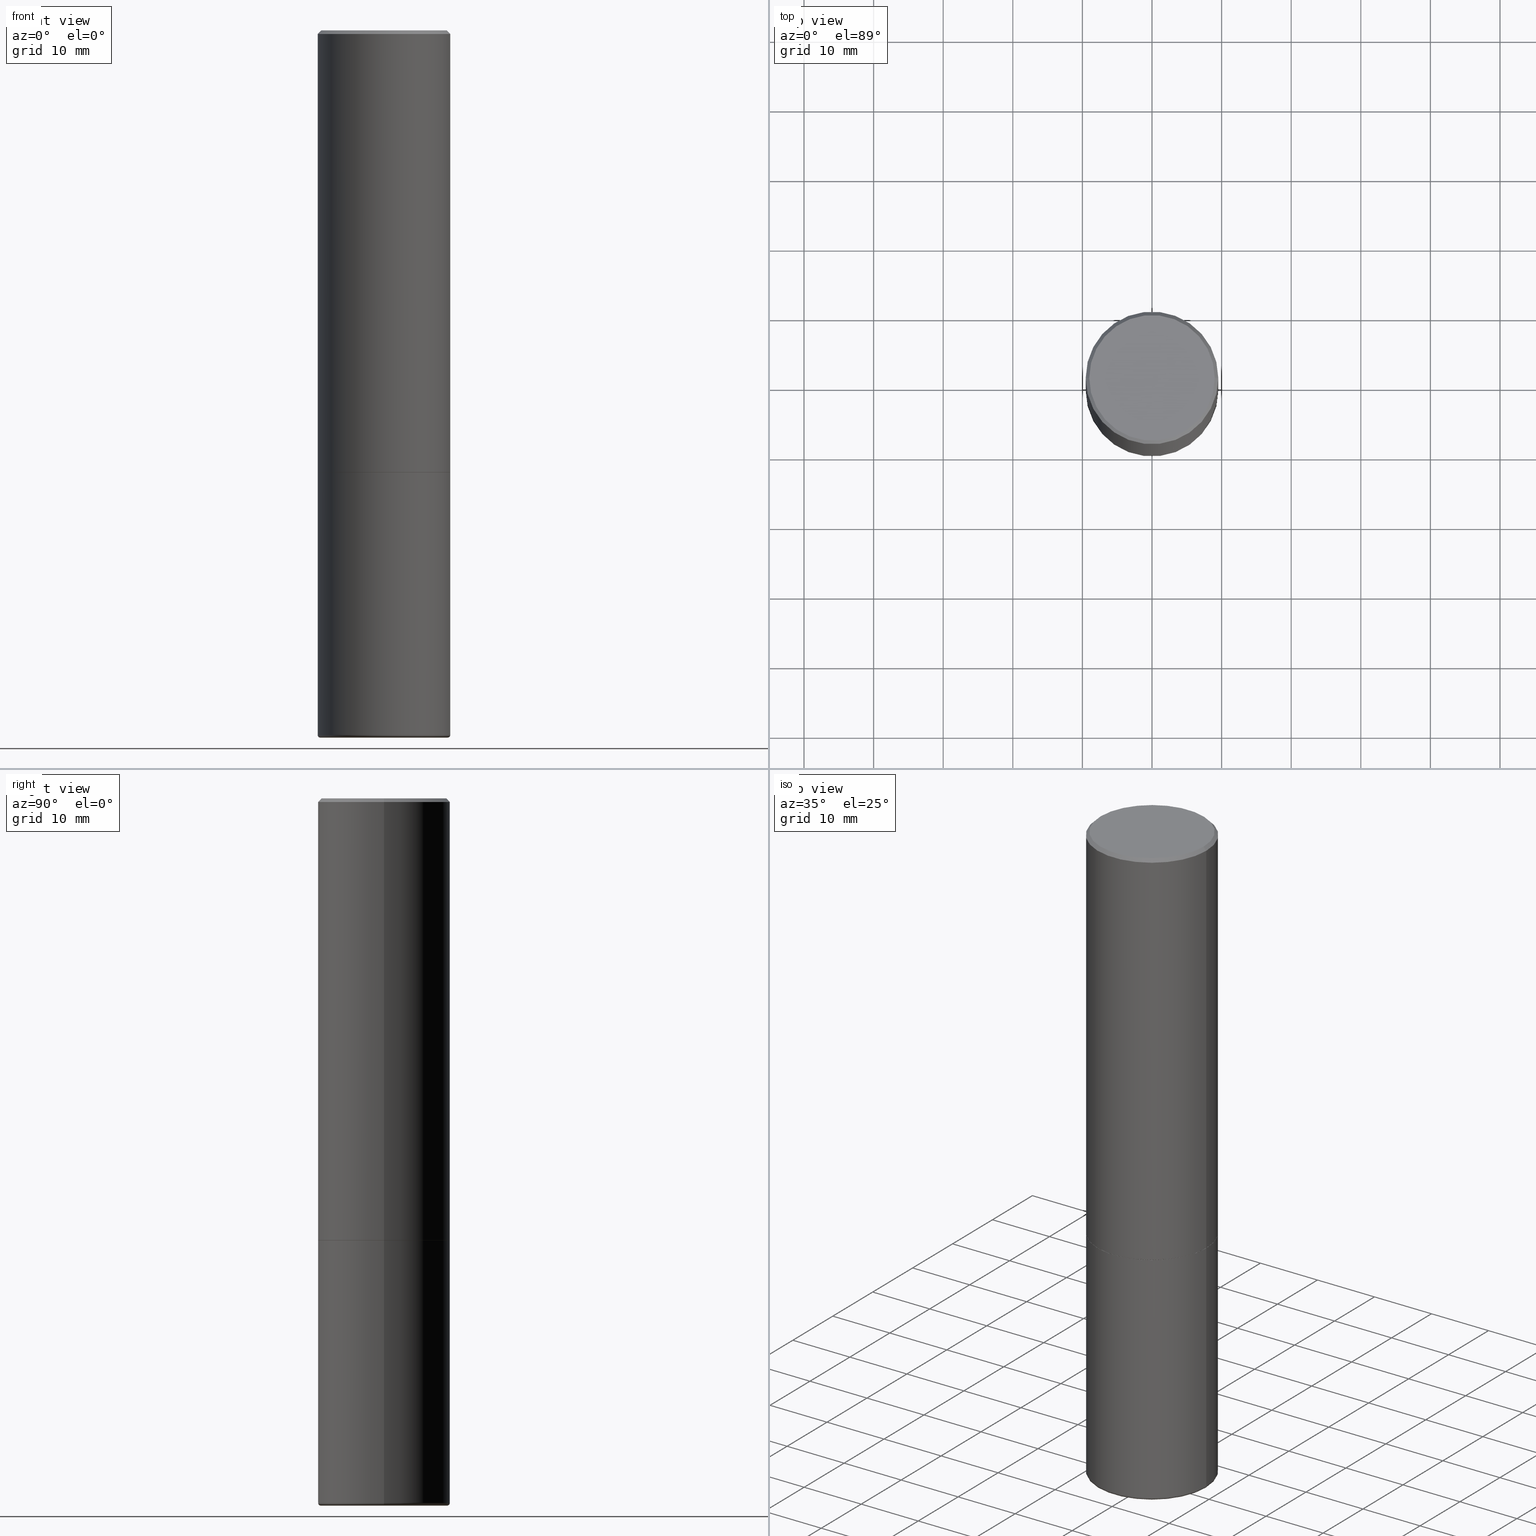
[diagram: canonical four-view strip — front | top / right | iso, engineering-drawing reading convention]
A machine part, canonical four-view strip (front | top / right | iso — engineering-drawing reading convention). The complete STEP part file that produces these views, byte-faithful:
ISO-10303-21;
HEADER;
FILE_DESCRIPTION (( 'STEP AP203' ),
    '1' );
FILE_NAME ('38143.STEP',
    '2023-03-22T20:23:32',
    ( '' ),
    ( '' ),
    'SwSTEP 2.0',
    'SolidWorks 2022',
    '' );
FILE_SCHEMA (( 'CONFIG_CONTROL_DESIGN' ));
ENDSEC;

DATA;
#1 = EDGE_CURVE ( 'NONE', #236, #395, #165, .T. ) ;
#2 = CARTESIAN_POINT ( 'NONE',  ( 4.890937612370276662E-31, -6.982962677686296539E-17, -0.02000000000000001776 ) ) ;
#3 = ORIENTED_EDGE ( 'NONE', *, *, #90, .T. ) ;
#4 = ORIENTED_EDGE ( 'NONE', *, *, #287, .T. ) ;
#5 = CARTESIAN_POINT ( 'NONE',  ( 1.060141371205406140E-27, -1.513600911505160878E-13, -43.35125308178423609 ) ) ;
#6 = ORIENTED_EDGE ( 'NONE', *, *, #90, .F. ) ;
#7 = ORIENTED_EDGE ( 'NONE', *, *, #352, .F. ) ;
#8 = DIRECTION ( 'NONE',  ( 1.000000000000000000, -6.982962677686276966E-15, 0.000000000000000000 ) ) ;
#9 = VERTEX_POINT ( 'NONE', #75 ) ;
#10 = CARTESIAN_POINT ( 'NONE',  ( 6.111226546656659252E-29, -8.725211865769023513E-15, -2.499000000000000998 ) ) ;
#11 = CARTESIAN_POINT ( 'NONE',  ( 0.3739999999999999991, -1.134033138856252737E-14, -2.499999999999999556 ) ) ;
#12 = FACE_OUTER_BOUND ( 'NONE', #159, .T. ) ;
#13 = VERTEX_POINT ( 'NONE', #378 ) ;
#14 = VECTOR ( 'NONE', #134, 39.37007874015748143 ) ;
#15 = DESIGN_CONTEXT ( 'detailed design', #149, 'design' ) ;
#16 = SHAPE_DEFINITION_REPRESENTATION ( #422, #172 ) ;
#17 = EDGE_CURVE ( 'NONE', #299, #395, #370, .T. ) ;
#18 = PERSON ( 'UNSPECIFIED', 'UNSPECIFIED', 'UNSPECIFIED', ('UNSPECIFIED'), ('UNSPECIFIED'), ('UNSPECIFIED') ) ;
#19 = AXIS2_PLACEMENT_3D ( 'NONE', #127, #256, #83 ) ;
#20 = CIRCLE ( 'NONE', #233, 0.3592149606563559971 ) ;
#21 = APPROVAL ( #238, 'UNSPECIFIED' ) ;
#22 = FACE_OUTER_BOUND ( 'NONE', #193, .T. ) ;
#23 = ADVANCED_FACE ( 'NONE', ( #232 ), #143, .F. ) ;
#24 = CARTESIAN_POINT ( 'NONE',  ( -0.3750000000000000555, -8.656628869252251980E-15, -2.500000000000000000 ) ) ;
#25 = CARTESIAN_POINT ( 'NONE',  ( -1.043851414335219820E-46, 1.490343170380447200E-32, 4.268512490100411279E-18 ) ) ;
#26 = FACE_OUTER_BOUND ( 'NONE', #102, .T. ) ;
#27 = EDGE_CURVE ( 'NONE', #13, #338, #167, .T. ) ;
#28 = ORIENTED_EDGE ( 'NONE', *, *, #1, .T. ) ;
#29 = DIRECTION ( 'NONE',  ( 2.445468806185136597E-29, -3.491481338843145583E-15, -1.000000000000000000 ) ) ;
#30 = LOCAL_TIME ( 16, 23, 32.00000000000000000, #74 ) ;
#31 = ORIENTED_EDGE ( 'NONE', *, *, #321, .T. ) ;
#32 = ORIENTED_EDGE ( 'NONE', *, *, #303, .F. ) ;
#33 = EDGE_CURVE ( 'NONE', #299, #9, #261, .T. ) ;
#34 = DIRECTION ( 'NONE',  ( 0.000000000000000000, 0.000000000000000000, 1.000000000000000000 ) ) ;
#35 = DIRECTION ( 'NONE',  ( 1.000000000000000000, -6.982962677686265922E-15, 4.876176775795935793E-29 ) ) ;
#36 = ORIENTED_EDGE ( 'NONE', *, *, #194, .T. ) ;
#37 = DIRECTION ( 'NONE',  ( -2.445468806185136597E-29, 3.491481338843145583E-15, 1.000000000000000000 ) ) ;
#38 = AXIS2_PLACEMENT_3D ( 'NONE', #375, #40, #8 ) ;
#39 = DIRECTION ( 'NONE',  ( 2.445468806185136597E-29, -3.491481338843145583E-15, -1.000000000000000000 ) ) ;
#40 = DIRECTION ( 'NONE',  ( -6.982962677686266711E-15, -1.000000000000000000, 3.491481338843145583E-15 ) ) ;
#41 = VECTOR ( 'NONE', #72, 39.37007874015748143 ) ;
#42 = EDGE_CURVE ( 'NONE', #231, #236, #409, .T. ) ;
#43 = AXIS2_PLACEMENT_3D ( 'NONE', #97, #290, #435 ) ;
#44 = DATE_TIME_ROLE ( 'classification_date' ) ;
#45 = PRODUCT ( '38143', '38143', '', ( #298 ) ) ;
#46 = PRODUCT_RELATED_PRODUCT_CATEGORY ( 'detail', '', ( #45 ) ) ;
#47 = COORDINATED_UNIVERSAL_TIME_OFFSET ( 5, 0, .BEHIND. ) ;
#48 = PRODUCT_DEFINITION ( 'UNKNOWN', '', #54, #15 ) ;
#49 = AXIS2_PLACEMENT_3D ( 'NONE', #78, #341, #379 ) ;
#50 = LOCAL_TIME ( 16, 23, 32.00000000000000000, #247 ) ;
#51 = EDGE_CURVE ( 'NONE', #272, #226, #322, .T. ) ;
#52 = AXIS2_PLACEMENT_3D ( 'NONE', #317, #390, #53 ) ;
#53 = DIRECTION ( 'NONE',  ( 1.000000000000000000, -6.982962677686266711E-15, 0.000000000000000000 ) ) ;
#54 = PRODUCT_DEFINITION_FORMATION_WITH_SPECIFIED_SOURCE ( 'ANY', '', #45, .NOT_KNOWN. ) ;
#55 = CARTESIAN_POINT ( 'NONE',  ( 2.618611004132411153E-15, 0.3749999999999912847, -2.500000000000001332 ) ) ;
#56 = DIRECTION ( 'NONE',  ( 1.000000000000000000, 0.000000000000000000, 0.000000000000000000 ) ) ;
#57 = ORIENTED_EDGE ( 'NONE', *, *, #27, .T. ) ;
#58 = EDGE_LOOP ( 'NONE', ( #136, #67, #235 ) ) ;
#59 = ORIENTED_EDGE ( 'NONE', *, *, #374, .T. ) ;
#60 = CARTESIAN_POINT ( 'NONE',  ( 9.781875224740547508E-29, -1.396592535537258391E-14, -4.000000000000000888 ) ) ;
#61 = FACE_OUTER_BOUND ( 'NONE', #229, .T. ) ;
#62 = ORIENTED_EDGE ( 'NONE', *, *, #223, .T. ) ;
#63 = EDGE_LOOP ( 'NONE', ( #132, #355, #319, #147 ) ) ;
#64 = AXIS2_PLACEMENT_3D ( 'NONE', #369, #175, #35 ) ;
#65 = CIRCLE ( 'NONE', #38, 0.01499999999999970281 ) ;
#66 = ORIENTED_EDGE ( 'NONE', *, *, #307, .T. ) ;
#67 = ORIENTED_EDGE ( 'NONE', *, *, #51, .T. ) ;
#68 = APPROVAL ( #249, 'UNSPECIFIED' ) ;
#69 = DIRECTION ( 'NONE',  ( -1.000000000000000000, 6.982962677686266711E-15, 0.000000000000000000 ) ) ;
#70 = LENGTH_MEASURE_WITH_UNIT ( LENGTH_MEASURE( 0.02539999999999999897 ), #295 );
#71 = ORIENTED_EDGE ( 'NONE', *, *, #27, .F. ) ;
#72 = DIRECTION ( 'NONE',  ( -2.445468806185136877E-29, 3.491481338843145188E-15, 1.000000000000000000 ) ) ;
#73 = CARTESIAN_POINT ( 'NONE',  ( 9.745243464097886300E-29, -1.391362490959738726E-14, -3.985020556978682293 ) ) ;
#74 = COORDINATED_UNIVERSAL_TIME_OFFSET ( 5, 0, .BEHIND. ) ;
#75 = CARTESIAN_POINT ( 'NONE',  ( 0.3749999999999996669, -2.642516375941185268E-15, -0.02000000000000001776 ) ) ;
#76 = EDGE_CURVE ( 'NONE', #105, #400, #200, .T. ) ;
#77 = DIRECTION ( 'NONE',  ( 1.000000000000000000, -6.982962677686265922E-15, 4.876176775795935793E-29 ) ) ;
#78 = CARTESIAN_POINT ( 'NONE',  ( 6.113672015462840371E-29, -8.728703347107863365E-15, -2.499999999999999556 ) ) ;
#79 = CIRCLE ( 'NONE', #217, 0.3750000000000000555 ) ;
#80 = CARTESIAN_POINT ( 'NONE',  ( 0.3749999999999996669, -2.642516375941185268E-15, -0.02000000000000001776 ) ) ;
#81 = DIRECTION ( 'NONE',  ( 1.000000000000000000, -6.982962677686267499E-15, 4.883557194083112901E-29 ) ) ;
#82 = PERSON_AND_ORGANIZATION ( #18, #351 ) ;
#83 = DIRECTION ( 'NONE',  ( 1.000000000000000000, -6.982962677686266711E-15, 0.000000000000000000 ) ) ;
#84 = CONICAL_SURFACE ( 'NONE', #216, 0.3749999999999996669, 0.7853981633974476129 ) ;
#85 = CIRCLE ( 'NONE', #43, 0.3750000000000000555 ) ;
#86 = ADVANCED_FACE ( 'NONE', ( #240 ), #185, .T. ) ;
#87 = PERSON_AND_ORGANIZATION_ROLE ( 'creator' ) ;
#88 = CC_DESIGN_APPROVAL ( #68, ( #418 ) ) ;
#89 = CARTESIAN_POINT ( 'NONE',  ( 0.000000000000000000, 0.000000000000000000, 0.000000000000000000 ) ) ;
#90 = EDGE_CURVE ( 'NONE', #133, #404, #222, .T. ) ;
#91 = DIRECTION ( 'NONE',  ( -1.000000000000000000, 6.982962677686265922E-15, -4.876176775795935793E-29 ) ) ;
#92 = AXIS2_PLACEMENT_3D ( 'NONE', #155, #29, #162 ) ;
#93 = DIRECTION ( 'NONE',  ( -2.445468806185136597E-29, 3.491481338843145583E-15, 1.000000000000000000 ) ) ;
#94 = AXIS2_PLACEMENT_3D ( 'NONE', #367, #158, #358 ) ;
#95 = CARTESIAN_POINT ( 'NONE',  ( 6.113672015462840371E-29, -8.728703347107863365E-15, -2.499999999999999556 ) ) ;
#96 = DIRECTION ( 'NONE',  ( 2.445468806185136597E-29, -3.491481338843145583E-15, -1.000000000000000000 ) ) ;
#97 = CARTESIAN_POINT ( 'NONE',  ( 6.113672015462842613E-29, -8.728703347107864943E-15, -2.500000000000000000 ) ) ;
#98 = EDGE_LOOP ( 'NONE', ( #6, #66, #267, #227 ) ) ;
#99 = DIRECTION ( 'NONE',  ( -2.445468806185136877E-29, 3.491481338843145188E-15, 1.000000000000000000 ) ) ;
#100 = DIRECTION ( 'NONE',  ( -2.445468806185136597E-29, 3.491481338843145583E-15, 1.000000000000000000 ) ) ;
#101 = ORIENTED_EDGE ( 'NONE', *, *, #284, .F. ) ;
#102 = EDGE_LOOP ( 'NONE', ( #71, #431, #179, #372 ) ) ;
#103 = DIRECTION ( 'NONE',  ( 1.000000000000000000, -6.982962677686266711E-15, 4.876176775795935793E-29 ) ) ;
#104 = VECTOR ( 'NONE', #429, 39.37007874015748143 ) ;
#105 = VERTEX_POINT ( 'NONE', #320 ) ;
#106 = DIRECTION ( 'NONE',  ( -2.445468806185136877E-29, 3.491481338843145188E-15, 1.000000000000000000 ) ) ;
#107 = DIRECTION ( 'NONE',  ( -2.445468806185136597E-29, 3.491481338843145583E-15, 1.000000000000000000 ) ) ;
#108 = PERSON_AND_ORGANIZATION ( #18, #351 ) ;
#109 = ORIENTED_EDGE ( 'NONE', *, *, #17, .F. ) ;
#110 = DIRECTION ( 'NONE',  ( 1.000000000000000000, -6.982962677686262766E-15, 0.000000000000000000 ) ) ;
#111 = CYLINDRICAL_SURFACE ( 'NONE', #145, 0.3749999999999998890 ) ;
#112 = AXIS2_PLACEMENT_3D ( 'NONE', #89, #219, #402 ) ;
#113 = CARTESIAN_POINT ( 'NONE',  ( 9.745243464097886300E-29, -1.391362490959738726E-14, -3.985020556978682293 ) ) ;
#114 = EDGE_CURVE ( 'NONE', #331, #9, #241, .T. ) ;
#115 = PERSON_AND_ORGANIZATION ( #18, #351 ) ;
#116 = CC_DESIGN_DATE_AND_TIME_ASSIGNMENT ( #385, #44, ( #418 ) ) ;
#117 = DATE_AND_TIME ( #347, #316 ) ;
#118 = EDGE_CURVE ( 'NONE', #272, #170, #122, .T. ) ;
#119 = CARTESIAN_POINT ( 'NONE',  ( -0.3749999999999996669, 2.548781377355484746E-15, -0.02000000000000001776 ) ) ;
#120 = VECTOR ( 'NONE', #106, 39.37007874015748143 ) ;
#121 = CARTESIAN_POINT ( 'NONE',  ( 2.478951750578622237E-15, 0.3549999999999997047, -1.237341619044265441E-15 ) ) ;
#122 = LINE ( 'NONE', #323, #14 ) ;
#123 = DIRECTION ( 'NONE',  ( -2.445468806185136597E-29, 3.491481338843145583E-15, 1.000000000000000000 ) ) ;
#124 = FACE_OUTER_BOUND ( 'NONE', #98, .T. ) ;
#125 = CARTESIAN_POINT ( 'NONE',  ( -0.3549999999999997047, 2.513866563967053491E-15, 4.268512490082953109E-18 ) ) ;
#126 = ORIENTED_EDGE ( 'NONE', *, *, #386, .F. ) ;
#127 = CARTESIAN_POINT ( 'NONE',  ( 4.890937612370276662E-31, -6.982962677686296539E-17, -0.02000000000000001776 ) ) ;
#128 = CIRCLE ( 'NONE', #357, 0.3750000000000000555 ) ;
#129 = CARTESIAN_POINT ( 'NONE',  ( 6.113672015462840371E-29, -8.728703347107863365E-15, -2.499999999999999556 ) ) ;
#130 = AXIS2_PLACEMENT_3D ( 'NONE', #55, #271, #91 ) ;
#131 = CARTESIAN_POINT ( 'NONE',  ( -0.3749999999999999445, -1.732985487172565737E-15, -2.499000000000000998 ) ) ;
#132 = ORIENTED_EDGE ( 'NONE', *, *, #17, .T. ) ;
#133 = VERTEX_POINT ( 'NONE', #366 ) ;
#134 = DIRECTION ( 'NONE',  ( 0.9986295347545742773, -7.033825938271997912E-15, -0.05233595624293643084 ) ) ;
#135 = PERSON_AND_ORGANIZATION_ROLE ( 'design_owner' ) ;
#136 = ORIENTED_EDGE ( 'NONE', *, *, #118, .F. ) ;
#137 = ORIENTED_EDGE ( 'NONE', *, *, #303, .T. ) ;
#138 = CLOSED_SHELL ( 'NONE', ( #151, #280, #315, #421, #184, #292, #283 ) ) ;
#139 = EDGE_CURVE ( 'NONE', #404, #133, #380, .T. ) ;
#140 = AXIS2_PLACEMENT_3D ( 'NONE', #5, #39, #69 ) ;
#141 = DIRECTION ( 'NONE',  ( -2.445468806185136597E-29, 3.491481338843145583E-15, 1.000000000000000000 ) ) ;
#142 = ORIENTED_EDGE ( 'NONE', *, *, #349, .T. ) ;
#143 = PLANE ( 'NONE',  #64 ) ;
#144 = CARTESIAN_POINT ( 'NONE',  ( 9.781875224740547508E-29, -1.396592535537258391E-14, -4.000000000000000888 ) ) ;
#145 = AXIS2_PLACEMENT_3D ( 'NONE', #343, #382, #103 ) ;
#146 = APPROVAL_DATE_TIME ( #117, #21 ) ;
#147 = ORIENTED_EDGE ( 'NONE', *, *, #33, .F. ) ;
#148 = CC_DESIGN_PERSON_AND_ORGANIZATION_ASSIGNMENT ( #279, #310, ( #54 ) ) ;
#149 = APPLICATION_CONTEXT ( 'configuration controlled 3d designs of mechanical parts and assemblies' ) ;
#150 = CONICAL_SURFACE ( 'NONE', #410, 0.3739999999999999991, 0.7853981633980972044 ) ;
#151 = ADVANCED_FACE ( 'NONE', ( #188 ), #339, .F. ) ;
#152 = ADVANCED_FACE ( 'NONE', ( #124 ), #84, .T. ) ;
#153 = VECTOR ( 'NONE', #408, 39.37007874015748143 ) ;
#154 = AXIS2_PLACEMENT_3D ( 'NONE', #121, #391, #218 ) ;
#155 = CARTESIAN_POINT ( 'NONE',  ( 1.060141371205406140E-27, -1.513600911505160878E-13, -43.35125308178423609 ) ) ;
#156 = DATE_AND_TIME ( #192, #244 ) ;
#157 = ORIENTED_EDGE ( 'NONE', *, *, #42, .F. ) ;
#158 = DIRECTION ( 'NONE',  ( 7.105427357601001859E-15, 1.000000000000000000, -3.491481338843145583E-15 ) ) ;
#159 = EDGE_LOOP ( 'NONE', ( #407, #413, #31, #325 ) ) ;
#160 = AXIS2_PLACEMENT_3D ( 'NONE', #360, #224, #294 ) ;
#161 = APPROVAL_PERSON_ORGANIZATION ( #82, #68, #350 ) ;
#162 = DIRECTION ( 'NONE',  ( -1.000000000000000000, 6.982962677686266711E-15, 0.000000000000000000 ) ) ;
#163 = DIRECTION ( 'NONE',  ( 1.000000000000000000, -6.982962677686266711E-15, 0.000000000000000000 ) ) ;
#164 = ORIENTED_EDGE ( 'NONE', *, *, #223, .F. ) ;
#165 = LINE ( 'NONE', #239, #153 ) ;
#166 = EDGE_LOOP ( 'NONE', ( #196, #62, #332, #362 ) ) ;
#167 = LINE ( 'NONE', #208, #120 ) ;
#168 = EDGE_CURVE ( 'NONE', #9, #331, #171, .T. ) ;
#169 = COORDINATED_UNIVERSAL_TIME_OFFSET ( 5, 0, .BEHIND. ) ;
#170 = VERTEX_POINT ( 'NONE', #297 ) ;
#171 = CIRCLE ( 'NONE', #52, 0.3749999999999996669 ) ;
#172 = ADVANCED_BREP_SHAPE_REPRESENTATION ( '38143', ( #245, #387, #438 ), #348 ) ;
#173 = CONICAL_SURFACE ( 'NONE', #140, 751.2258538476739886, 1.518436449235074148 ) ;
#174 = ORIENTED_EDGE ( 'NONE', *, *, #194, .F. ) ;
#175 = DIRECTION ( 'NONE',  ( -2.438088387897960049E-29, 3.491481338843145188E-15, 1.000000000000000000 ) ) ;
#176 = DIRECTION ( 'NONE',  ( 0.7071067811865469066, -7.319954787623252890E-15, -0.7071067811865479058 ) ) ;
#177 = CC_DESIGN_DATE_AND_TIME_ASSIGNMENT ( #412, #376, ( #48 ) ) ;
#178 = DIRECTION ( 'NONE',  ( -0.7071067811865469066, 2.468850131082251144E-15, -0.7071067811865479058 ) ) ;
#179 = ORIENTED_EDGE ( 'NONE', *, *, #76, .T. ) ;
#180 = FACE_OUTER_BOUND ( 'NONE', #58, .T. ) ;
#181 = CIRCLE ( 'NONE', #381, 0.3749999999999997780 ) ;
#182 = APPROVAL_DATE_TIME ( #277, #68 ) ;
#183 = ORIENTED_EDGE ( 'NONE', *, *, #114, .F. ) ;
#184 = ADVANCED_FACE ( 'NONE', ( #26 ), #393, .T. ) ;
#185 = CONICAL_SURFACE ( 'NONE', #49, 0.3739999999999999991, 0.7853981633980972044 ) ;
#186 = VECTOR ( 'NONE', #176, 39.37007874015748854 ) ;
#187 = CC_DESIGN_PERSON_AND_ORGANIZATION_ASSIGNMENT ( #423, #87, ( #54 ) ) ;
#188 = FACE_OUTER_BOUND ( 'NONE', #273, .T. ) ;
#189 = AXIS2_PLACEMENT_3D ( 'NONE', #10, #441, #305 ) ;
#190 = CIRCLE ( 'NONE', #94, 0.01499999999999970281 ) ;
#191 = APPLICATION_CONTEXT ( 'configuration controlled 3d designs of mechanical parts and assemblies' ) ;
#192 = CALENDAR_DATE ( 2023, 22, 3 ) ;
#193 = EDGE_LOOP ( 'NONE', ( #304, #3 ) ) ;
#194 = EDGE_CURVE ( 'NONE', #400, #338, #128, .T. ) ;
#195 = APPLICATION_PROTOCOL_DEFINITION ( 'international standard', 'config_control_design', 1994, #191 ) ;
#196 = ORIENTED_EDGE ( 'NONE', *, *, #1, .F. ) ;
#197 = CARTESIAN_POINT ( 'NONE',  ( 6.113672015462840371E-29, -8.728703347107863365E-15, -2.499999999999999556 ) ) ;
#198 = DIRECTION ( 'NONE',  ( -2.445468806185136597E-29, 3.491481338843145583E-15, 1.000000000000000000 ) ) ;
#199 = DIRECTION ( 'NONE',  ( -2.445468806185136597E-29, 3.491481338843145583E-15, 1.000000000000000000 ) ) ;
#200 = LINE ( 'NONE', #401, #285 ) ;
#201 = TOROIDAL_SURFACE ( 'NONE', #308, 0.3600000000000000422, 0.01499999999999967852 ) ;
#202 = EDGE_LOOP ( 'NONE', ( #157, #164 ) ) ;
#203 = DIRECTION ( 'NONE',  ( -2.445468806185136597E-29, 3.491481338843145583E-15, 1.000000000000000000 ) ) ;
#204 = PERSON_AND_ORGANIZATION ( #18, #351 ) ;
#205 = EDGE_LOOP ( 'NONE', ( #383, #57, #174, #377 ) ) ;
#206 = DIRECTION ( 'NONE',  ( -2.445468806185136597E-29, 3.491481338843145583E-15, 1.000000000000000000 ) ) ;
#207 = CALENDAR_DATE ( 2023, 22, 3 ) ;
#208 = CARTESIAN_POINT ( 'NONE',  ( -0.3749999999999998890, 2.664535259100374908E-15, -1.844600658845589038E-29 ) ) ;
#209 = LINE ( 'NONE', #11, #293 ) ;
#210 = APPROVAL_PERSON_ORGANIZATION ( #108, #21, #442 ) ;
#211 = CARTESIAN_POINT ( 'NONE',  ( -0.3749999999999996669, 2.548781377355484746E-15, -0.02000000000000001776 ) ) ;
#212 = DIRECTION ( 'NONE',  ( 0.7071067811870063169, -2.468850131087062801E-15, 0.7071067811860887176 ) ) ;
#213 = COORDINATED_UNIVERSAL_TIME_OFFSET ( 5, 0, .BEHIND. ) ;
#214 = ADVANCED_FACE ( 'NONE', ( #364 ), #433, .T. ) ;
#215 = CALENDAR_DATE ( 2023, 22, 3 ) ;
#216 = AXIS2_PLACEMENT_3D ( 'NONE', #2, #96, #392 ) ;
#217 = AXIS2_PLACEMENT_3D ( 'NONE', #354, #123, #253 ) ;
#218 = DIRECTION ( 'NONE',  ( -1.000000000000000000, 6.982962677686265922E-15, -4.876176775795935793E-29 ) ) ;
#219 = DIRECTION ( 'NONE',  ( -2.445468806185136597E-29, 3.491481338843145583E-15, 1.000000000000000000 ) ) ;
#220 = CARTESIAN_POINT ( 'NONE',  ( 0.3750000000000000555, -1.134731435124021338E-14, -2.500000000000000000 ) ) ;
#221 = DIRECTION ( 'NONE',  ( -2.445468806185136597E-29, 3.491481338843145583E-15, 1.000000000000000000 ) ) ;
#222 = CIRCLE ( 'NONE', #281, 0.3549999999999997047 ) ;
#223 = EDGE_CURVE ( 'NONE', #236, #231, #394, .T. ) ;
#224 = DIRECTION ( 'NONE',  ( -2.445468806185136597E-29, 3.491481338843145583E-15, 1.000000000000000000 ) ) ;
#225 = APPROVAL_ROLE ( '' ) ;
#226 = VERTEX_POINT ( 'NONE', #398 ) ;
#227 = ORIENTED_EDGE ( 'NONE', *, *, #321, .F. ) ;
#228 = DIRECTION ( 'NONE',  ( -2.445468806185136597E-29, 3.491481338843145583E-15, 1.000000000000000000 ) ) ;
#229 = EDGE_LOOP ( 'NONE', ( #36, #59 ) ) ;
#230 = EDGE_CURVE ( 'NONE', #170, #226, #257, .T. ) ;
#231 = VERTEX_POINT ( 'NONE', #270 ) ;
#232 = FACE_OUTER_BOUND ( 'NONE', #202, .T. ) ;
#233 = AXIS2_PLACEMENT_3D ( 'NONE', #144, #107, #237 ) ;
#234 = APPLICATION_PROTOCOL_DEFINITION ( 'international standard', 'config_control_design', 1994, #149 ) ;
#235 = ORIENTED_EDGE ( 'NONE', *, *, #230, .F. ) ;
#236 = VERTEX_POINT ( 'NONE', #276 ) ;
#237 = DIRECTION ( 'NONE',  ( 1.000000000000000000, -6.982962677686262766E-15, 0.000000000000000000 ) ) ;
#238 = APPROVAL_STATUS ( 'not_yet_approved' ) ;
#239 = CARTESIAN_POINT ( 'NONE',  ( -0.3739999999999999991, -6.071273515365087887E-15, -2.499999999999999556 ) ) ;
#240 = FACE_OUTER_BOUND ( 'NONE', #296, .T. ) ;
#241 = CIRCLE ( 'NONE', #19, 0.3749999999999996669 ) ;
#242 = FACE_OUTER_BOUND ( 'NONE', #437, .T. ) ;
#243 = PERSON_AND_ORGANIZATION_ROLE ( 'classification_officer' ) ;
#244 = LOCAL_TIME ( 16, 23, 32.00000000000000000, #169 ) ;
#245 = MANIFOLD_SOLID_BREP ( 'Body-Move/Copy2[1]', #138 ) ;
#246 = CARTESIAN_POINT ( 'NONE',  ( 4.890937612370276662E-31, -6.982962677686296539E-17, -0.02000000000000001776 ) ) ;
#247 = COORDINATED_UNIVERSAL_TIME_OFFSET ( 5, 0, .BEHIND. ) ;
#248 = ADVANCED_FACE ( 'NONE', ( #419 ), #309, .T. ) ;
#249 = APPROVAL_STATUS ( 'not_yet_approved' ) ;
#250 = CC_DESIGN_PERSON_AND_ORGANIZATION_ASSIGNMENT ( #430, #254, ( #48 ) ) ;
#251 = AXIS2_PLACEMENT_3D ( 'NONE', #60, #198, #110 ) ;
#252 = CARTESIAN_POINT ( 'NONE',  ( -1.043851414335219820E-46, 1.490343170380447200E-32, 4.268512490100411279E-18 ) ) ;
#253 = DIRECTION ( 'NONE',  ( 1.000000000000000000, -6.982962677686264344E-15, 0.000000000000000000 ) ) ;
#254 = PERSON_AND_ORGANIZATION_ROLE ( 'creator' ) ;
#255 = ORIENTED_EDGE ( 'NONE', *, *, #352, .T. ) ;
#256 = DIRECTION ( 'NONE',  ( -2.445468806185136597E-29, 3.491481338843145583E-15, 1.000000000000000000 ) ) ;
#257 = CIRCLE ( 'NONE', #251, 0.3592149606563559971 ) ;
#258 = AXIS2_PLACEMENT_3D ( 'NONE', #73, #206, #337 ) ;
#259 = DIRECTION ( 'NONE',  ( 1.000000000000000000, -6.982962677686268288E-15, 0.000000000000000000 ) ) ;
#260 = CARTESIAN_POINT ( 'NONE',  ( 9.745243464097887421E-29, -1.391362490959739041E-14, -3.985020556978683182 ) ) ;
#261 = LINE ( 'NONE', #373, #41 ) ;
#262 = ADVANCED_FACE ( 'NONE', ( #12 ), #275, .T. ) ;
#263 = DIRECTION ( 'NONE',  ( -2.445468806185136597E-29, 3.491481338843145583E-15, 1.000000000000000000 ) ) ;
#264 =( NAMED_UNIT ( * ) PLANE_ANGLE_UNIT ( ) SI_UNIT ( $, .RADIAN. ) );
#265 = ORIENTED_EDGE ( 'NONE', *, *, #230, .T. ) ;
#266 = FACE_OUTER_BOUND ( 'NONE', #440, .T. ) ;
#267 = ORIENTED_EDGE ( 'NONE', *, *, #168, .T. ) ;
#268 = AXIS2_PLACEMENT_3D ( 'NONE', #252, #263, #329 ) ;
#269 = TOROIDAL_SURFACE ( 'NONE', #258, 0.3600000000000000422, 0.01499999999999967852 ) ;
#270 = CARTESIAN_POINT ( 'NONE',  ( 0.3739999999999999991, -1.134033138856252737E-14, -2.499999999999999556 ) ) ;
#271 = DIRECTION ( 'NONE',  ( 2.438088387897960049E-29, -3.491481338843145188E-15, -1.000000000000000000 ) ) ;
#272 = VERTEX_POINT ( 'NONE', #411 ) ;
#273 = EDGE_LOOP ( 'NONE', ( #363, #301, #289 ) ) ;
#274 = CARTESIAN_POINT ( 'NONE',  ( 0.3750000000000000555, -1.134382286990137353E-14, -2.499000000000000998 ) ) ;
#275 = CONICAL_SURFACE ( 'NONE', #388, 0.3749999999999996669, 0.7853981633974476129 ) ;
#276 = CARTESIAN_POINT ( 'NONE',  ( -0.3739999999999999991, -6.065975061016867852E-15, -2.499999999999999556 ) ) ;
#277 = DATE_AND_TIME ( #215, #278 ) ;
#278 = LOCAL_TIME ( 16, 23, 32.00000000000000000, #47 ) ;
#279 = PERSON_AND_ORGANIZATION ( #18, #351 ) ;
#280 = ADVANCED_FACE ( 'NONE', ( #242 ), #201, .T. ) ;
#281 = AXIS2_PLACEMENT_3D ( 'NONE', #25, #221, #359 ) ;
#282 = VECTOR ( 'NONE', #178, 39.37007874015748854 ) ;
#283 = ADVANCED_FACE ( 'NONE', ( #180 ), #173, .F. ) ;
#284 = EDGE_CURVE ( 'NONE', #231, #299, #209, .T. ) ;
#285 = VECTOR ( 'NONE', #99, 39.37007874015748143 ) ;
#286 = CIRCLE ( 'NONE', #313, 0.3749999999999997780 ) ;
#287 = EDGE_CURVE ( 'NONE', #226, #170, #20, .T. ) ;
#288 = APPROVAL_DATE_TIME ( #156, #415 ) ;
#289 = ORIENTED_EDGE ( 'NONE', *, *, #287, .F. ) ;
#290 = DIRECTION ( 'NONE',  ( -2.445468806185136597E-29, 3.491481338843145583E-15, 1.000000000000000000 ) ) ;
#291 = DIRECTION ( 'NONE',  ( -0.9986295347545742773, 6.790662755453668466E-15, -0.05233595624293643084 ) ) ;
#292 = ADVANCED_FACE ( 'NONE', ( #266 ), #269, .T. ) ;
#293 = VECTOR ( 'NONE', #212, 39.37007874015748143 ) ;
#294 = DIRECTION ( 'NONE',  ( 1.000000000000000000, -6.982962677686265922E-15, 4.876176775795935793E-29 ) ) ;
#295 =( LENGTH_UNIT ( ) NAMED_UNIT ( * ) SI_UNIT ( $, .METRE. ) );
#296 = EDGE_LOOP ( 'NONE', ( #414, #28, #109, #101 ) ) ;
#297 = CARTESIAN_POINT ( 'NONE',  ( 0.3592149606563559971, -1.647431001890245631E-14, -4.000000000000000888 ) ) ;
#298 = MECHANICAL_CONTEXT ( 'NONE', #191, 'mechanical' ) ;
#299 = VERTEX_POINT ( 'NONE', #274 ) ;
#300 = PERSON_AND_ORGANIZATION ( #18, #351 ) ;
#301 = ORIENTED_EDGE ( 'NONE', *, *, #118, .T. ) ;
#302 = DIRECTION ( 'NONE',  ( -2.445468806185136597E-29, 3.491481338843145583E-15, 1.000000000000000000 ) ) ;
#303 = EDGE_CURVE ( 'NONE', #170, #105, #65, .T. ) ;
#304 = ORIENTED_EDGE ( 'NONE', *, *, #139, .T. ) ;
#305 = DIRECTION ( 'NONE',  ( 1.000000000000000000, -6.982962677686264344E-15, 0.000000000000000000 ) ) ;
#306 = FACE_OUTER_BOUND ( 'NONE', #205, .T. ) ;
#307 = EDGE_CURVE ( 'NONE', #133, #9, #340, .T. ) ;
#308 = AXIS2_PLACEMENT_3D ( 'NONE', #113, #302, #81 ) ;
#309 = CYLINDRICAL_SURFACE ( 'NONE', #327, 0.3749999999999998335 ) ;
#310 = PERSON_AND_ORGANIZATION_ROLE ( 'design_supplier' ) ;
#311 = CC_DESIGN_PERSON_AND_ORGANIZATION_ASSIGNMENT ( #115, #243, ( #418 ) ) ;
#312 = VECTOR ( 'NONE', #291, 39.37007874015748143 ) ;
#313 = AXIS2_PLACEMENT_3D ( 'NONE', #399, #141, #163 ) ;
#314 = LINE ( 'NONE', #424, #104 ) ;
#315 = ADVANCED_FACE ( 'NONE', ( #306 ), #111, .T. ) ;
#316 = LOCAL_TIME ( 16, 23, 32.00000000000000000, #213 ) ;
#317 = CARTESIAN_POINT ( 'NONE',  ( 4.890937612370276662E-31, -6.982962677686296539E-17, -0.02000000000000001776 ) ) ;
#318 = FACE_OUTER_BOUND ( 'NONE', #166, .T. ) ;
#319 = ORIENTED_EDGE ( 'NONE', *, *, #168, .F. ) ;
#320 = CARTESIAN_POINT ( 'NONE',  ( 0.3749999999999997780, -1.653223591372973727E-14, -3.985020556978683182 ) ) ;
#321 = EDGE_CURVE ( 'NONE', #404, #331, #384, .T. ) ;
#322 = LINE ( 'NONE', #336, #312 ) ;
#323 = CARTESIAN_POINT ( 'NONE',  ( 1.397970657025703069E-18, -1.390019592047097410E-14, -3.981174341626758650 ) ) ;
#324 = PLANE ( 'NONE',  #130 ) ;
#325 = ORIENTED_EDGE ( 'NONE', *, *, #114, .T. ) ;
#326 = ORIENTED_EDGE ( 'NONE', *, *, #333, .F. ) ;
#327 = AXIS2_PLACEMENT_3D ( 'NONE', #416, #203, #77 ) ;
#328 = CC_DESIGN_SECURITY_CLASSIFICATION ( #418, ( #54 ) ) ;
#329 = DIRECTION ( 'NONE',  ( 1.000000000000000000, -6.982962677686265922E-15, 4.876231632511992107E-29 ) ) ;
#330 = CARTESIAN_POINT ( 'NONE',  ( 0.000000000000000000, 0.000000000000000000, 0.000000000000000000 ) ) ;
#331 = VERTEX_POINT ( 'NONE', #119 ) ;
#332 = ORIENTED_EDGE ( 'NONE', *, *, #284, .T. ) ;
#333 = EDGE_CURVE ( 'NONE', #395, #331, #314, .T. ) ;
#334 = DIRECTION ( 'NONE',  ( -1.000000000000000000, 6.982962677686266711E-15, 0.000000000000000000 ) ) ;
#335 = EDGE_LOOP ( 'NONE', ( #326, #142, #368, #183 ) ) ;
#336 = CARTESIAN_POINT ( 'NONE',  ( -1.397970656830986544E-18, -1.390019592047097410E-14, -3.981174341626758650 ) ) ;
#337 = DIRECTION ( 'NONE',  ( 1.000000000000000000, -6.982962677686267499E-15, 4.883557194083112901E-29 ) ) ;
#338 = VERTEX_POINT ( 'NONE', #24 ) ;
#339 = CONICAL_SURFACE ( 'NONE', #92, 751.2258538476739886, 1.518436449235074148 ) ;
#340 = LINE ( 'NONE', #80, #186 ) ;
#341 = DIRECTION ( 'NONE',  ( -2.445468806185136597E-29, 3.491481338843145583E-15, 1.000000000000000000 ) ) ;
#342 = ADVANCED_FACE ( 'NONE', ( #22 ), #428, .F. ) ;
#343 = CARTESIAN_POINT ( 'NONE',  ( 0.000000000000000000, 0.000000000000000000, 0.000000000000000000 ) ) ;
#344 = CALENDAR_DATE ( 2023, 22, 3 ) ;
#345 = UNCERTAINTY_MEASURE_WITH_UNIT (LENGTH_MEASURE( 1.000000000000000082E-05 ), #439, 'distance_accuracy_value', 'NONE');
#346 = AXIS2_PLACEMENT_3D ( 'NONE', #129, #100, #259 ) ;
#347 = CALENDAR_DATE ( 2023, 22, 3 ) ;
#348 =( GEOMETRIC_REPRESENTATION_CONTEXT ( 3 ) GLOBAL_UNCERTAINTY_ASSIGNED_CONTEXT ( ( #345 ) ) GLOBAL_UNIT_ASSIGNED_CONTEXT ( ( #439, #264, #403 ) ) REPRESENTATION_CONTEXT ( 'NONE', 'WORKASPACE' ) );
#349 = EDGE_CURVE ( 'NONE', #395, #299, #79, .T. ) ;
#350 = APPROVAL_ROLE ( '' ) ;
#351 = ORGANIZATION ( 'UNSPECIFIED', 'UNSPECIFIED', '' ) ;
#352 = EDGE_CURVE ( 'NONE', #226, #13, #190, .T. ) ;
#353 = DIRECTION ( 'NONE',  ( 1.000000000000000000, -6.982962677686264344E-15, 0.000000000000000000 ) ) ;
#354 = CARTESIAN_POINT ( 'NONE',  ( 6.111226546656659252E-29, -8.725211865769023513E-15, -2.499000000000000998 ) ) ;
#355 = ORIENTED_EDGE ( 'NONE', *, *, #333, .T. ) ;
#356 = CARTESIAN_POINT ( 'NONE',  ( 6.113672015462842613E-29, -8.728703347107864943E-15, -2.500000000000000000 ) ) ;
#357 = AXIS2_PLACEMENT_3D ( 'NONE', #356, #93, #353 ) ;
#358 = DIRECTION ( 'NONE',  ( -1.000000000000000000, 7.105427357601001859E-15, 0.000000000000000000 ) ) ;
#359 = DIRECTION ( 'NONE',  ( 1.000000000000000000, -6.982962677686265922E-15, 4.876231632511992107E-29 ) ) ;
#360 = CARTESIAN_POINT ( 'NONE',  ( 0.000000000000000000, 0.000000000000000000, 0.000000000000000000 ) ) ;
#361 = DIRECTION ( 'NONE',  ( 1.000000000000000000, -6.982962677686266711E-15, 0.000000000000000000 ) ) ;
#362 = ORIENTED_EDGE ( 'NONE', *, *, #349, .F. ) ;
#363 = ORIENTED_EDGE ( 'NONE', *, *, #51, .F. ) ;
#364 = FACE_OUTER_BOUND ( 'NONE', #63, .T. ) ;
#365 = DIRECTION ( 'NONE',  ( 1.000000000000000000, -6.982962677686268288E-15, 0.000000000000000000 ) ) ;
#366 = CARTESIAN_POINT ( 'NONE',  ( 0.3549999999999997047, -2.538996582575038287E-15, 4.268512490117958041E-18 ) ) ;
#367 = CARTESIAN_POINT ( 'NONE',  ( -0.3600000000000000422, -1.135567106086102747E-14, -3.985020556978682293 ) ) ;
#368 = ORIENTED_EDGE ( 'NONE', *, *, #33, .T. ) ;
#369 = CARTESIAN_POINT ( 'NONE',  ( 6.113672015462842613E-29, -8.728703347107864943E-15, -2.500000000000000000 ) ) ;
#370 = CIRCLE ( 'NONE', #189, 0.3750000000000000555 ) ;
#371 = APPROVAL_STATUS ( 'not_yet_approved' ) ;
#372 = ORIENTED_EDGE ( 'NONE', *, *, #374, .F. ) ;
#373 = CARTESIAN_POINT ( 'NONE',  ( 0.3749999999999998335, -2.618611004132348439E-15, 1.828566290923475082E-29 ) ) ;
#374 = EDGE_CURVE ( 'NONE', #338, #400, #85, .T. ) ;
#375 = CARTESIAN_POINT ( 'NONE',  ( 0.3600000000000000422, -1.642749147356444390E-14, -3.985020556978682293 ) ) ;
#376 = DATE_TIME_ROLE ( 'creation_date' ) ;
#377 = ORIENTED_EDGE ( 'NONE', *, *, #76, .F. ) ;
#378 = CARTESIAN_POINT ( 'NONE',  ( -0.3749999999999997780, -8.656628869252253558E-15, -3.985020556978683182 ) ) ;
#379 = DIRECTION ( 'NONE',  ( 1.000000000000000000, -6.982962677686268288E-15, 0.000000000000000000 ) ) ;
#380 = CIRCLE ( 'NONE', #268, 0.3549999999999997047 ) ;
#381 = AXIS2_PLACEMENT_3D ( 'NONE', #260, #199, #361 ) ;
#382 = DIRECTION ( 'NONE',  ( -2.445468806185136597E-29, 3.491481338843145583E-15, 1.000000000000000000 ) ) ;
#383 = ORIENTED_EDGE ( 'NONE', *, *, #386, .T. ) ;
#384 = LINE ( 'NONE', #211, #282 ) ;
#385 = DATE_AND_TIME ( #344, #50 ) ;
#386 = EDGE_CURVE ( 'NONE', #105, #13, #181, .T. ) ;
#387 = MANIFOLD_SOLID_BREP ( 'Body-Move/Copy2[2]', #425 ) ;
#388 = AXIS2_PLACEMENT_3D ( 'NONE', #246, #405, #334 ) ;
#389 = EDGE_CURVE ( 'NONE', #13, #105, #286, .T. ) ;
#390 = DIRECTION ( 'NONE',  ( -2.445468806185136597E-29, 3.491481338843145583E-15, 1.000000000000000000 ) ) ;
#391 = DIRECTION ( 'NONE',  ( 2.438088387897960049E-29, -3.491481338843145188E-15, -1.000000000000000000 ) ) ;
#392 = DIRECTION ( 'NONE',  ( -1.000000000000000000, 6.982962677686266711E-15, 0.000000000000000000 ) ) ;
#393 = CYLINDRICAL_SURFACE ( 'NONE', #112, 0.3749999999999998890 ) ;
#394 = CIRCLE ( 'NONE', #346, 0.3739999999999999991 ) ;
#395 = VERTEX_POINT ( 'NONE', #131 ) ;
#396 = DIRECTION ( 'NONE',  ( 1.000000000000000000, -6.982962677686268288E-15, 0.000000000000000000 ) ) ;
#397 = CC_DESIGN_APPROVAL ( #415, ( #48 ) ) ;
#398 = CARTESIAN_POINT ( 'NONE',  ( -0.3592149606563559971, -1.133131959858118137E-14, -4.000000000000000888 ) ) ;
#399 = CARTESIAN_POINT ( 'NONE',  ( 9.745243464097887421E-29, -1.391362490959739041E-14, -3.985020556978683182 ) ) ;
#400 = VERTEX_POINT ( 'NONE', #220 ) ;
#401 = CARTESIAN_POINT ( 'NONE',  ( 0.3749999999999998890, -2.618611004132349228E-15, 1.828566290923475362E-29 ) ) ;
#402 = DIRECTION ( 'NONE',  ( 1.000000000000000000, -6.982962677686266711E-15, 4.876176775795935793E-29 ) ) ;
#403 =( NAMED_UNIT ( * ) SI_UNIT ( $, .STERADIAN. ) SOLID_ANGLE_UNIT ( ) );
#404 = VERTEX_POINT ( 'NONE', #125 ) ;
#405 = DIRECTION ( 'NONE',  ( 2.445468806185136597E-29, -3.491481338843145583E-15, -1.000000000000000000 ) ) ;
#406 = ADVANCED_FACE ( 'NONE', ( #318 ), #150, .T. ) ;
#407 = ORIENTED_EDGE ( 'NONE', *, *, #307, .F. ) ;
#408 = DIRECTION ( 'NONE',  ( -0.7071067811870063169, 7.493145998872012346E-15, 0.7071067811860887176 ) ) ;
#409 = CIRCLE ( 'NONE', #417, 0.3739999999999999991 ) ;
#410 = AXIS2_PLACEMENT_3D ( 'NONE', #95, #228, #365 ) ;
#411 = CARTESIAN_POINT ( 'NONE',  ( 9.734861466740703587E-29, -1.390159389112790192E-14, -3.981174341626758650 ) ) ;
#412 = DATE_AND_TIME ( #207, #30 ) ;
#413 = ORIENTED_EDGE ( 'NONE', *, *, #139, .F. ) ;
#414 = ORIENTED_EDGE ( 'NONE', *, *, #42, .T. ) ;
#415 = APPROVAL ( #371, 'UNSPECIFIED' ) ;
#416 = CARTESIAN_POINT ( 'NONE',  ( 0.000000000000000000, 0.000000000000000000, 0.000000000000000000 ) ) ;
#417 = AXIS2_PLACEMENT_3D ( 'NONE', #197, #37, #396 ) ;
#418 = SECURITY_CLASSIFICATION ( '', '', #420 ) ;
#419 = FACE_OUTER_BOUND ( 'NONE', #335, .T. ) ;
#420 = SECURITY_CLASSIFICATION_LEVEL ( 'unclassified' ) ;
#421 = ADVANCED_FACE ( 'NONE', ( #61 ), #324, .F. ) ;
#422 = PRODUCT_DEFINITION_SHAPE ( 'NONE', 'NONE',  #48 ) ;
#423 = PERSON_AND_ORGANIZATION ( #18, #351 ) ;
#424 = CARTESIAN_POINT ( 'NONE',  ( -0.3749999999999998335, 2.664535259100374514E-15, -1.844600658845588757E-29 ) ) ;
#425 = CLOSED_SHELL ( 'NONE', ( #86, #214, #152, #262, #248, #406, #23, #342 ) ) ;
#426 = CC_DESIGN_APPROVAL ( #21, ( #54 ) ) ;
#427 = DIMENSIONAL_EXPONENTS ( 1.000000000000000000, 0.000000000000000000, 0.000000000000000000, 0.000000000000000000, 0.000000000000000000, 0.000000000000000000, 0.000000000000000000 ) ;
#428 = PLANE ( 'NONE',  #154 ) ;
#429 = DIRECTION ( 'NONE',  ( -2.445468806185136877E-29, 3.491481338843145188E-15, 1.000000000000000000 ) ) ;
#430 = PERSON_AND_ORGANIZATION ( #18, #351 ) ;
#431 = ORIENTED_EDGE ( 'NONE', *, *, #389, .T. ) ;
#432 = CC_DESIGN_PERSON_AND_ORGANIZATION_ASSIGNMENT ( #204, #135, ( #45 ) ) ;
#433 = CYLINDRICAL_SURFACE ( 'NONE', #160, 0.3749999999999998335 ) ;
#434 = APPROVAL_PERSON_ORGANIZATION ( #300, #415, #225 ) ;
#435 = DIRECTION ( 'NONE',  ( 1.000000000000000000, -6.982962677686264344E-15, 0.000000000000000000 ) ) ;
#436 = ORIENTED_EDGE ( 'NONE', *, *, #389, .F. ) ;
#437 = EDGE_LOOP ( 'NONE', ( #265, #255, #126, #32 ) ) ;
#438 = AXIS2_PLACEMENT_3D ( 'NONE', #330, #34, #56 ) ;
#439 =( CONVERSION_BASED_UNIT ( 'INCH', #70 ) LENGTH_UNIT ( ) NAMED_UNIT ( #427 ) );
#440 = EDGE_LOOP ( 'NONE', ( #7, #4, #137, #436 ) ) ;
#441 = DIRECTION ( 'NONE',  ( -2.445468806185136597E-29, 3.491481338843145583E-15, 1.000000000000000000 ) ) ;
#442 = APPROVAL_ROLE ( '' ) ;
ENDSEC;
END-ISO-10303-21;
